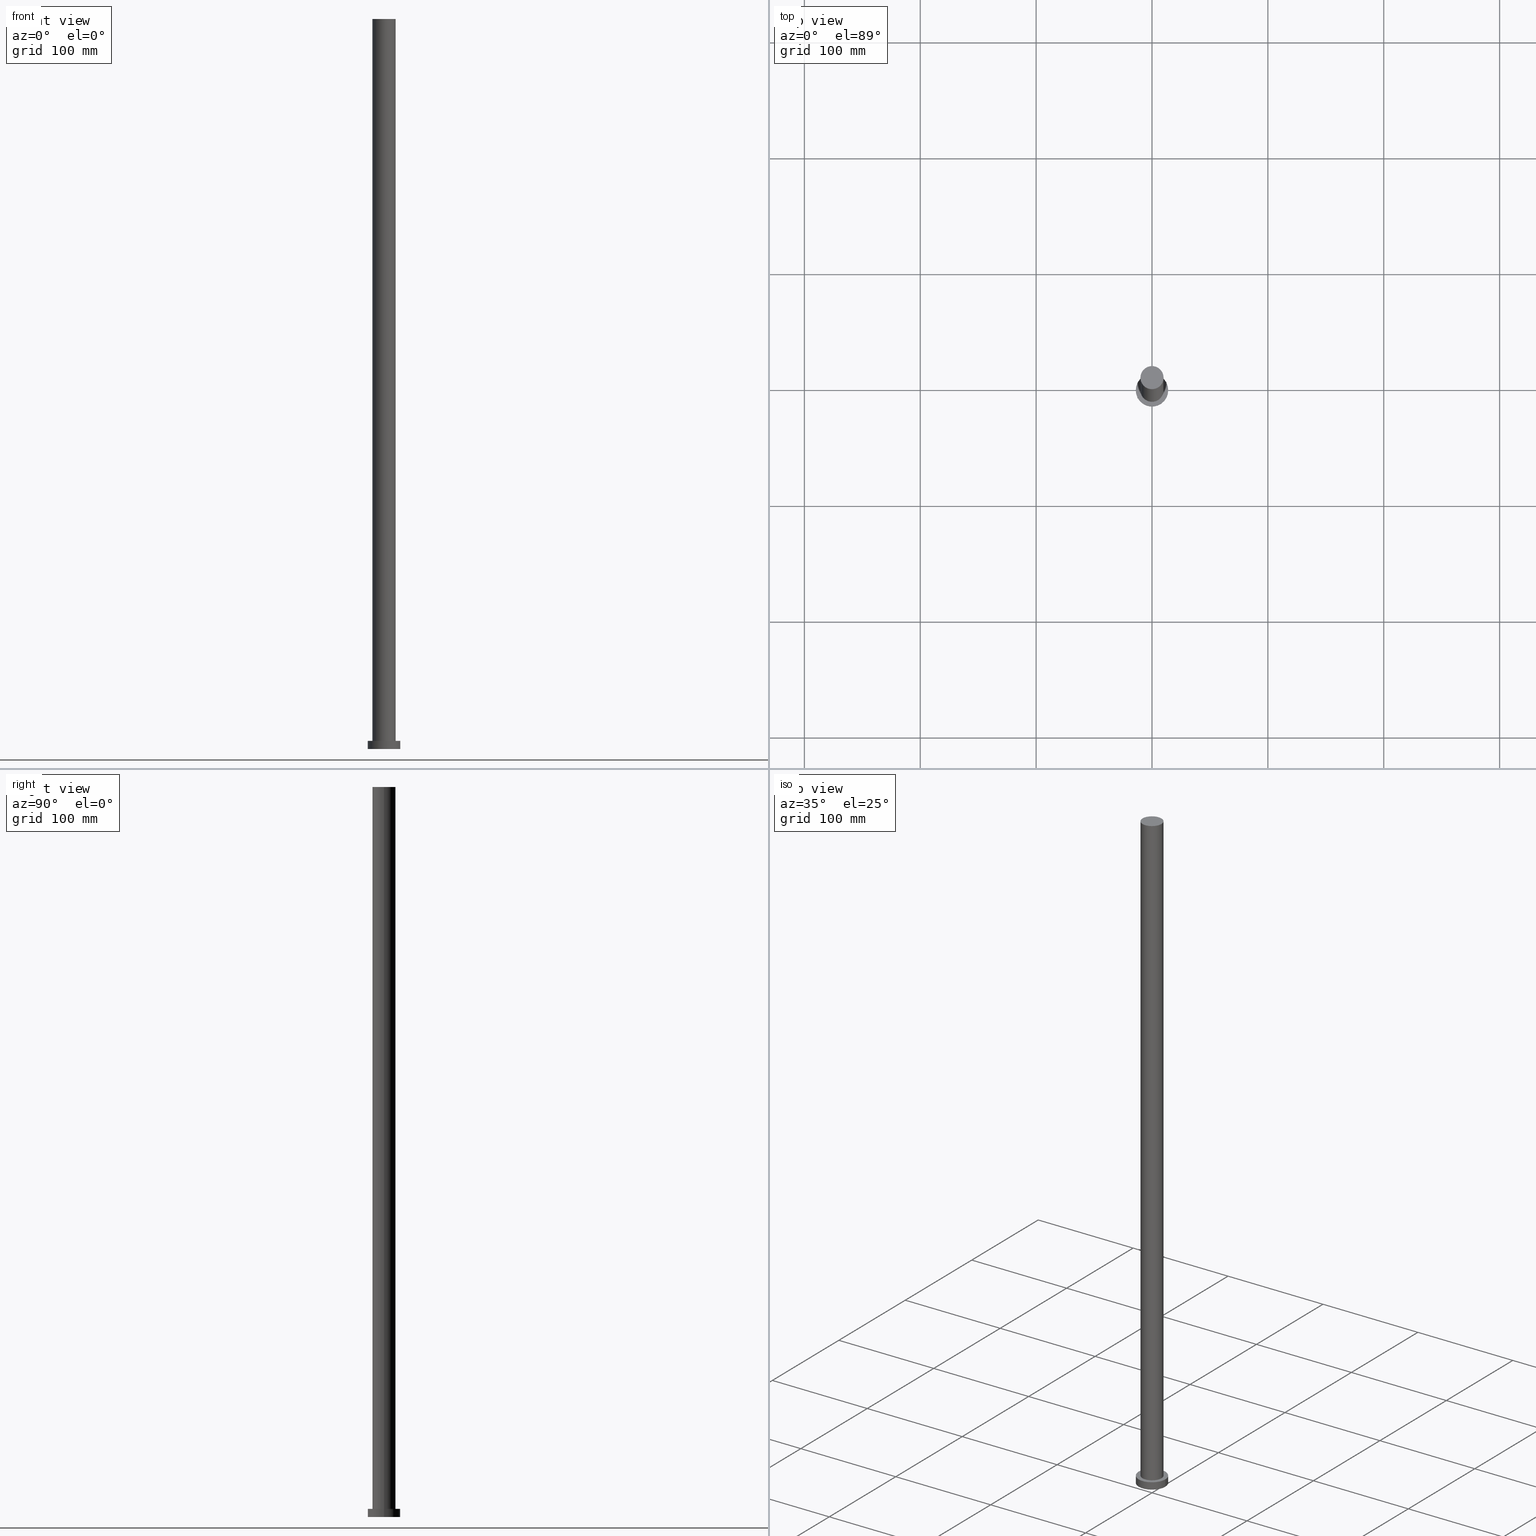
[diagram: canonical four-view strip — front | top / right | iso, engineering-drawing reading convention]
A machine part, canonical four-view strip (front | top / right | iso — engineering-drawing reading convention). The complete STEP part file that produces these views, byte-faithful:
ISO-10303-21;
HEADER;
FILE_DESCRIPTION (( 'STEP AP203' ),
    '1' );
FILE_NAME ('65ec.STEP',
    '2023-02-13T08:40:21',
    ( '' ),
    ( '' ),
    'SwSTEP 2.0',
    'SolidWorks 2019',
    '' );
FILE_SCHEMA (( 'CONFIG_CONTROL_DESIGN' ));
ENDSEC;

DATA;
#1 = ORIENTED_EDGE ( 'NONE', *, *, #174, .F. ) ;
#2 = EDGE_CURVE ( 'NONE', #104, #126, #176, .T. ) ;
#3 = AXIS2_PLACEMENT_3D ( 'NONE', #157, #167, #137 ) ;
#4 = APPROVAL_DATE_TIME ( #208, #120 ) ;
#5 = EDGE_LOOP ( 'NONE', ( #25, #252 ) ) ;
#6 = ADVANCED_FACE ( 'NONE', ( #69 ), #154, .T. ) ;
#7 = CALENDAR_DATE ( 2023, 13, 2 ) ;
#8 = CIRCLE ( 'NONE', #88, 14.00000000000000000 ) ;
#9 = DIRECTION ( 'NONE',  ( -0.000000000000000000, -0.000000000000000000, -1.000000000000000000 ) ) ;
#10 = CARTESIAN_POINT ( 'NONE',  ( 0.000000000000000000, 0.000000000000000000, 630.0000000000000000 ) ) ;
#11 = LOCAL_TIME ( 9, 40, 21.00000000000000000, #195 ) ;
#12 = DIRECTION ( 'NONE',  ( 1.000000000000000000, 0.000000000000000000, 0.000000000000000000 ) ) ;
#13 = APPROVAL ( #213, 'NEUR�EN�' ) ;
#14 = COORDINATED_UNIVERSAL_TIME_OFFSET ( 1, 0, .AHEAD. ) ;
#15 = MECHANICAL_CONTEXT ( 'NONE', #224, 'mechanical' ) ;
#16 = LOCAL_TIME ( 9, 40, 21.00000000000000000, #183 ) ;
#17 = PERSON_AND_ORGANIZATION ( #99, #26 ) ;
#18 = ADVANCED_FACE ( 'NONE', ( #109 ), #191, .T. ) ;
#19 = CARTESIAN_POINT ( 'NONE',  ( 0.000000000000000000, 0.000000000000000000, 7.000000000000000000 ) ) ;
#20 = ORIENTED_EDGE ( 'NONE', *, *, #146, .T. ) ;
#21 = PERSON_AND_ORGANIZATION_ROLE ( 'classification_officer' ) ;
#22 = ORIENTED_EDGE ( 'NONE', *, *, #51, .F. ) ;
#23 = PRODUCT_DEFINITION ( 'NEZN�M�', '', #39, #121 ) ;
#24 = FACE_OUTER_BOUND ( 'NONE', #5, .T. ) ;
#25 = ORIENTED_EDGE ( 'NONE', *, *, #55, .T. ) ;
#26 = ORGANIZATION ( 'NEUR�EN�', 'NEUR�EN�', '' ) ;
#27 = VERTEX_POINT ( 'NONE', #35 ) ;
#28 = ORIENTED_EDGE ( 'NONE', *, *, #62, .F. ) ;
#29 = AXIS2_PLACEMENT_3D ( 'NONE', #96, #127, #111 ) ;
#30 = AXIS2_PLACEMENT_3D ( 'NONE', #175, #141, #225 ) ;
#31 = CARTESIAN_POINT ( 'NONE',  ( -14.00000000000000000, 0.000000000000000000, 0.000000000000000000 ) ) ;
#32 = DIRECTION ( 'NONE',  ( -1.000000000000000000, 0.000000000000000000, 0.000000000000000000 ) ) ;
#33 = CARTESIAN_POINT ( 'NONE',  ( 0.000000000000000000, 0.000000000000000000, 0.000000000000000000 ) ) ;
#34 = CIRCLE ( 'NONE', #106, 10.00000000000000000 ) ;
#35 = CARTESIAN_POINT ( 'NONE',  ( 10.00000000000000000, 1.224646799147353256E-15, 7.000000000000000000 ) ) ;
#36 = DATE_AND_TIME ( #41, #11 ) ;
#37 = APPLICATION_PROTOCOL_DEFINITION ( 'international standard', 'config_control_design', 1994, #224 ) ;
#38 =( NAMED_UNIT ( * ) PLANE_ANGLE_UNIT ( ) SI_UNIT ( $, .RADIAN. ) );
#39 = PRODUCT_DEFINITION_FORMATION_WITH_SPECIFIED_SOURCE ( 'LIBOVOLN�', '', #78, .NOT_KNOWN. ) ;
#40 = DATE_AND_TIME ( #58, #16 ) ;
#41 = CALENDAR_DATE ( 2023, 13, 2 ) ;
#42 = ORIENTED_EDGE ( 'NONE', *, *, #214, .T. ) ;
#43 = DIRECTION ( 'NONE',  ( 0.000000000000000000, 0.000000000000000000, 1.000000000000000000 ) ) ;
#44 = DIRECTION ( 'NONE',  ( 1.000000000000000000, 0.000000000000000000, -0.000000000000000000 ) ) ;
#45 = CIRCLE ( 'NONE', #226, 10.00000000000000000 ) ;
#46 = CC_DESIGN_PERSON_AND_ORGANIZATION_ASSIGNMENT ( #17, #59, ( #78 ) ) ;
#47 = CARTESIAN_POINT ( 'NONE',  ( 0.000000000000000000, 0.000000000000000000, 7.000000000000000000 ) ) ;
#48 = DIRECTION ( 'NONE',  ( -1.000000000000000000, 0.000000000000000000, 0.000000000000000000 ) ) ;
#49 = DIRECTION ( 'NONE',  ( 0.000000000000000000, 0.000000000000000000, 1.000000000000000000 ) ) ;
#50 = DIRECTION ( 'NONE',  ( -1.000000000000000000, 0.000000000000000000, 0.000000000000000000 ) ) ;
#51 = EDGE_CURVE ( 'NONE', #165, #218, #112, .T. ) ;
#52 = PLANE ( 'NONE',  #30 ) ;
#53 = DIRECTION ( 'NONE',  ( 0.000000000000000000, 0.000000000000000000, 1.000000000000000000 ) ) ;
#54 = CALENDAR_DATE ( 2023, 13, 2 ) ;
#55 = EDGE_CURVE ( 'NONE', #87, #198, #8, .T. ) ;
#56 = PERSON_AND_ORGANIZATION ( #99, #26 ) ;
#57 = VECTOR ( 'NONE', #9, 1000.000000000000000 ) ;
#58 = CALENDAR_DATE ( 2023, 13, 2 ) ;
#59 = PERSON_AND_ORGANIZATION_ROLE ( 'design_owner' ) ;
#60 = EDGE_LOOP ( 'NONE', ( #128, #200 ) ) ;
#61 = CC_DESIGN_PERSON_AND_ORGANIZATION_ASSIGNMENT ( #144, #21, ( #66 ) ) ;
#62 = EDGE_CURVE ( 'NONE', #165, #235, #34, .T. ) ;
#63 = ORIENTED_EDGE ( 'NONE', *, *, #244, .F. ) ;
#64 = CARTESIAN_POINT ( 'NONE',  ( -14.00000000000000000, 0.000000000000000000, 7.000000000000000000 ) ) ;
#65 = EDGE_LOOP ( 'NONE', ( #63, #1 ) ) ;
#66 = SECURITY_CLASSIFICATION ( '', '', #161 ) ;
#67 = APPROVAL_STATUS ( 'not_yet_approved' ) ;
#68 = EDGE_CURVE ( 'NONE', #87, #126, #91, .T. ) ;
#69 = FACE_OUTER_BOUND ( 'NONE', #149, .T. ) ;
#70 = AXIS2_PLACEMENT_3D ( 'NONE', #210, #138, #50 ) ;
#71 = DIRECTION ( 'NONE',  ( 0.000000000000000000, 0.000000000000000000, 1.000000000000000000 ) ) ;
#72 = DIRECTION ( 'NONE',  ( -0.000000000000000000, -0.000000000000000000, -1.000000000000000000 ) ) ;
#73 = FACE_OUTER_BOUND ( 'NONE', #236, .T. ) ;
#74 = CIRCLE ( 'NONE', #29, 10.00000000000000000 ) ;
#75 = CARTESIAN_POINT ( 'NONE',  ( -10.00000000000000000, 0.000000000000000000, 630.0000000000000000 ) ) ;
#76 = CALENDAR_DATE ( 2023, 13, 2 ) ;
#77 = DIRECTION ( 'NONE',  ( 0.000000000000000000, 0.000000000000000000, 1.000000000000000000 ) ) ;
#78 = PRODUCT ( '65ec', '65ec', '', ( #15 ) ) ;
#79 = APPROVAL_ROLE ( '' ) ;
#80 = DATE_AND_TIME ( #54, #186 ) ;
#81 =( GEOMETRIC_REPRESENTATION_CONTEXT ( 3 ) GLOBAL_UNCERTAINTY_ASSIGNED_CONTEXT ( ( #181 ) ) GLOBAL_UNIT_ASSIGNED_CONTEXT ( ( #232, #38, #145 ) ) REPRESENTATION_CONTEXT ( 'NONE', 'WORKASPACE' ) );
#82 = APPROVAL ( #178, 'NEUR�EN�' ) ;
#83 = ORIENTED_EDGE ( 'NONE', *, *, #68, .T. ) ;
#84 = ORIENTED_EDGE ( 'NONE', *, *, #98, .T. ) ;
#85 = ORIENTED_EDGE ( 'NONE', *, *, #2, .F. ) ;
#86 = PLANE ( 'NONE',  #3 ) ;
#87 = VERTEX_POINT ( 'NONE', #64 ) ;
#88 = AXIS2_PLACEMENT_3D ( 'NONE', #92, #49, #12 ) ;
#89 = CC_DESIGN_DATE_AND_TIME_ASSIGNMENT ( #246, #125, ( #66 ) ) ;
#90 = DIRECTION ( 'NONE',  ( 0.000000000000000000, 0.000000000000000000, 1.000000000000000000 ) ) ;
#91 = LINE ( 'NONE', #172, #139 ) ;
#92 = CARTESIAN_POINT ( 'NONE',  ( 0.000000000000000000, 0.000000000000000000, 7.000000000000000000 ) ) ;
#93 = ADVANCED_FACE ( 'NONE', ( #73 ), #240, .T. ) ;
#94 = AXIS2_PLACEMENT_3D ( 'NONE', #108, #155, #48 ) ;
#95 = DIRECTION ( 'NONE',  ( 1.000000000000000000, 0.000000000000000000, 0.000000000000000000 ) ) ;
#96 = CARTESIAN_POINT ( 'NONE',  ( 0.000000000000000000, 0.000000000000000000, 630.0000000000000000 ) ) ;
#97 = DIRECTION ( 'NONE',  ( 0.000000000000000000, 0.000000000000000000, 1.000000000000000000 ) ) ;
#98 = EDGE_CURVE ( 'NONE', #235, #27, #229, .T. ) ;
#99 = PERSON ( 'NEUR�EN�', 'NEUR�EN�', 'NEUR�EN�', ('NEUR�EN�'), ('NEUR�EN�'), ('NEUR�EN�') ) ;
#100 = ADVANCED_FACE ( 'NONE', ( #241, #24 ), #86, .T. ) ;
#101 = ORIENTED_EDGE ( 'NONE', *, *, #151, .F. ) ;
#102 = CARTESIAN_POINT ( 'NONE',  ( 0.000000000000000000, 0.000000000000000000, 7.000000000000000000 ) ) ;
#103 = CIRCLE ( 'NONE', #247, 14.00000000000000000 ) ;
#104 = VERTEX_POINT ( 'NONE', #150 ) ;
#105 = ADVANCED_FACE ( 'NONE', ( #192 ), #219, .T. ) ;
#106 = AXIS2_PLACEMENT_3D ( 'NONE', #10, #136, #95 ) ;
#107 = CARTESIAN_POINT ( 'NONE',  ( 0.000000000000000000, 0.000000000000000000, 0.000000000000000000 ) ) ;
#108 = CARTESIAN_POINT ( 'NONE',  ( 0.000000000000000000, 0.000000000000000000, 630.0000000000000000 ) ) ;
#109 = FACE_OUTER_BOUND ( 'NONE', #217, .T. ) ;
#110 = CARTESIAN_POINT ( 'NONE',  ( 0.000000000000000000, 0.000000000000000000, 630.0000000000000000 ) ) ;
#111 = DIRECTION ( 'NONE',  ( 1.000000000000000000, 0.000000000000000000, 0.000000000000000000 ) ) ;
#112 = LINE ( 'NONE', #228, #57 ) ;
#113 = CC_DESIGN_APPROVAL ( #120, ( #66 ) ) ;
#114 = CARTESIAN_POINT ( 'NONE',  ( 10.00000000000000000, 1.224646799147353256E-15, 630.0000000000000000 ) ) ;
#115 = DIRECTION ( 'NONE',  ( 1.000000000000000000, 0.000000000000000000, 0.000000000000000000 ) ) ;
#116 = DIRECTION ( 'NONE',  ( 1.000000000000000000, 0.000000000000000000, 0.000000000000000000 ) ) ;
#117 = CC_DESIGN_APPROVAL ( #82, ( #23 ) ) ;
#118 = PERSON_AND_ORGANIZATION ( #99, #26 ) ;
#119 = PERSON_AND_ORGANIZATION_ROLE ( 'creator' ) ;
#120 = APPROVAL ( #67, 'NEUR�EN�' ) ;
#121 = DESIGN_CONTEXT ( 'detailed design', #250, 'design' ) ;
#122 = CARTESIAN_POINT ( 'NONE',  ( 0.000000000000000000, 0.000000000000000000, 0.000000000000000000 ) ) ;
#123 = AXIS2_PLACEMENT_3D ( 'NONE', #110, #188, #227 ) ;
#124 = ORIENTED_EDGE ( 'NONE', *, *, #98, .F. ) ;
#125 = DATE_TIME_ROLE ( 'classification_date' ) ;
#126 = VERTEX_POINT ( 'NONE', #31 ) ;
#127 = DIRECTION ( 'NONE',  ( 0.000000000000000000, 0.000000000000000000, 1.000000000000000000 ) ) ;
#128 = ORIENTED_EDGE ( 'NONE', *, *, #62, .T. ) ;
#129 = APPROVAL_PERSON_ORGANIZATION ( #56, #82, #233 ) ;
#130 = EDGE_LOOP ( 'NONE', ( #204, #85 ) ) ;
#131 = PRODUCT_DEFINITION_SHAPE ( 'NONE', 'NONE',  #23 ) ;
#132 = EDGE_CURVE ( 'NONE', #235, #165, #74, .T. ) ;
#133 = CYLINDRICAL_SURFACE ( 'NONE', #94, 10.00000000000000000 ) ;
#134 = CIRCLE ( 'NONE', #201, 10.00000000000000000 ) ;
#135 = ORIENTED_EDGE ( 'NONE', *, *, #244, .T. ) ;
#136 = DIRECTION ( 'NONE',  ( 0.000000000000000000, 0.000000000000000000, 1.000000000000000000 ) ) ;
#137 = DIRECTION ( 'NONE',  ( 1.000000000000000000, 0.000000000000000000, -0.000000000000000000 ) ) ;
#138 = DIRECTION ( 'NONE',  ( -0.000000000000000000, -0.000000000000000000, -1.000000000000000000 ) ) ;
#139 = VECTOR ( 'NONE', #193, 1000.000000000000000 ) ;
#140 = APPROVAL_ROLE ( '' ) ;
#141 = DIRECTION ( 'NONE',  ( 0.000000000000000000, 0.000000000000000000, 1.000000000000000000 ) ) ;
#142 = CIRCLE ( 'NONE', #216, 14.00000000000000000 ) ;
#143 = ADVANCED_FACE ( 'NONE', ( #242 ), #52, .F. ) ;
#144 = PERSON_AND_ORGANIZATION ( #99, #26 ) ;
#145 =( NAMED_UNIT ( * ) SI_UNIT ( $, .STERADIAN. ) SOLID_ANGLE_UNIT ( ) );
#146 = EDGE_CURVE ( 'NONE', #198, #104, #205, .T. ) ;
#147 = LOCAL_TIME ( 9, 40, 21.00000000000000000, #173 ) ;
#148 = APPLICATION_PROTOCOL_DEFINITION ( 'international standard', 'config_control_design', 1994, #250 ) ;
#149 = EDGE_LOOP ( 'NONE', ( #101, #20, #239, #202 ) ) ;
#150 = CARTESIAN_POINT ( 'NONE',  ( 14.00000000000000000, 1.714505518806294638E-15, 0.000000000000000000 ) ) ;
#151 = EDGE_CURVE ( 'NONE', #198, #87, #142, .T. ) ;
#152 = LOCAL_TIME ( 9, 40, 21.00000000000000000, #248 ) ;
#153 = SHAPE_DEFINITION_REPRESENTATION ( #131, #254 ) ;
#154 = CYLINDRICAL_SURFACE ( 'NONE', #251, 14.00000000000000000 ) ;
#155 = DIRECTION ( 'NONE',  ( -0.000000000000000000, -0.000000000000000000, -1.000000000000000000 ) ) ;
#156 = VECTOR ( 'NONE', #243, 1000.000000000000000 ) ;
#157 = CARTESIAN_POINT ( 'NONE',  ( 0.000000000000000000, 0.000000000000000000, 7.000000000000000000 ) ) ;
#158 = AXIS2_PLACEMENT_3D ( 'NONE', #209, #43, #44 ) ;
#159 = CARTESIAN_POINT ( 'NONE',  ( 10.00000000000000000, 1.224646799147353256E-15, 630.0000000000000000 ) ) ;
#160 = PERSON_AND_ORGANIZATION ( #99, #26 ) ;
#161 = SECURITY_CLASSIFICATION_LEVEL ( 'unclassified' ) ;
#162 = EDGE_LOOP ( 'NONE', ( #189, #84, #249, #22 ) ) ;
#163 = CC_DESIGN_PERSON_AND_ORGANIZATION_ASSIGNMENT ( #160, #197, ( #39 ) ) ;
#164 = CLOSED_SHELL ( 'NONE', ( #187, #6, #18, #100, #143, #93, #105 ) ) ;
#165 = VERTEX_POINT ( 'NONE', #75 ) ;
#166 = ORIENTED_EDGE ( 'NONE', *, *, #55, .F. ) ;
#167 = DIRECTION ( 'NONE',  ( 0.000000000000000000, 0.000000000000000000, 1.000000000000000000 ) ) ;
#168 = CC_DESIGN_PERSON_AND_ORGANIZATION_ASSIGNMENT ( #118, #119, ( #23 ) ) ;
#169 = DIRECTION ( 'NONE',  ( 1.000000000000000000, 0.000000000000000000, 0.000000000000000000 ) ) ;
#170 = CC_DESIGN_DATE_AND_TIME_ASSIGNMENT ( #40, #177, ( #23 ) ) ;
#171 = DIRECTION ( 'NONE',  ( 1.000000000000000000, 0.000000000000000000, 0.000000000000000000 ) ) ;
#172 = CARTESIAN_POINT ( 'NONE',  ( -14.00000000000000000, 0.000000000000000000, 7.000000000000000000 ) ) ;
#173 = COORDINATED_UNIVERSAL_TIME_OFFSET ( 1, 0, .AHEAD. ) ;
#174 = EDGE_CURVE ( 'NONE', #27, #218, #45, .T. ) ;
#175 = CARTESIAN_POINT ( 'NONE',  ( 0.000000000000000000, 0.000000000000000000, 0.000000000000000000 ) ) ;
#176 = CIRCLE ( 'NONE', #223, 14.00000000000000000 ) ;
#177 = DATE_TIME_ROLE ( 'creation_date' ) ;
#178 = APPROVAL_STATUS ( 'not_yet_approved' ) ;
#179 = DIRECTION ( 'NONE',  ( 1.000000000000000000, 0.000000000000000000, 0.000000000000000000 ) ) ;
#180 = PERSON_AND_ORGANIZATION ( #99, #26 ) ;
#181 = UNCERTAINTY_MEASURE_WITH_UNIT (LENGTH_MEASURE( 1.000000000000000082E-05 ), #232, 'distance_accuracy_value', 'NONE');
#182 = APPROVAL_PERSON_ORGANIZATION ( #253, #120, #140 ) ;
#183 = COORDINATED_UNIVERSAL_TIME_OFFSET ( 1, 0, .AHEAD. ) ;
#184 = CC_DESIGN_PERSON_AND_ORGANIZATION_ASSIGNMENT ( #245, #215, ( #39 ) ) ;
#185 = ORIENTED_EDGE ( 'NONE', *, *, #51, .T. ) ;
#186 = LOCAL_TIME ( 9, 40, 21.00000000000000000, #14 ) ;
#187 = ADVANCED_FACE ( 'NONE', ( #220 ), #133, .T. ) ;
#188 = DIRECTION ( 'NONE',  ( -0.000000000000000000, -0.000000000000000000, -1.000000000000000000 ) ) ;
#189 = ORIENTED_EDGE ( 'NONE', *, *, #132, .F. ) ;
#190 = CARTESIAN_POINT ( 'NONE',  ( 14.00000000000000000, 1.714505518806294638E-15, 7.000000000000000000 ) ) ;
#191 = CYLINDRICAL_SURFACE ( 'NONE', #70, 14.00000000000000000 ) ;
#192 = FACE_OUTER_BOUND ( 'NONE', #60, .T. ) ;
#193 = DIRECTION ( 'NONE',  ( -0.000000000000000000, -0.000000000000000000, -1.000000000000000000 ) ) ;
#194 = APPROVAL_PERSON_ORGANIZATION ( #180, #13, #79 ) ;
#195 = COORDINATED_UNIVERSAL_TIME_OFFSET ( 1, 0, .AHEAD. ) ;
#196 = APPROVAL_DATE_TIME ( #36, #82 ) ;
#197 = PERSON_AND_ORGANIZATION_ROLE ( 'design_supplier' ) ;
#198 = VERTEX_POINT ( 'NONE', #207 ) ;
#199 = APPROVAL_DATE_TIME ( #80, #13 ) ;
#200 = ORIENTED_EDGE ( 'NONE', *, *, #132, .T. ) ;
#201 = AXIS2_PLACEMENT_3D ( 'NONE', #19, #97, #115 ) ;
#202 = ORIENTED_EDGE ( 'NONE', *, *, #68, .F. ) ;
#203 = PRODUCT_RELATED_PRODUCT_CATEGORY ( 'detail', '', ( #78 ) ) ;
#204 = ORIENTED_EDGE ( 'NONE', *, *, #214, .F. ) ;
#205 = LINE ( 'NONE', #190, #156 ) ;
#206 = DIRECTION ( 'NONE',  ( -0.000000000000000000, -0.000000000000000000, -1.000000000000000000 ) ) ;
#207 = CARTESIAN_POINT ( 'NONE',  ( 14.00000000000000000, 1.714505518806294638E-15, 7.000000000000000000 ) ) ;
#208 = DATE_AND_TIME ( #7, #147 ) ;
#209 = CARTESIAN_POINT ( 'NONE',  ( 0.000000000000000000, 0.000000000000000000, 630.0000000000000000 ) ) ;
#210 = CARTESIAN_POINT ( 'NONE',  ( 0.000000000000000000, 0.000000000000000000, 7.000000000000000000 ) ) ;
#211 = CARTESIAN_POINT ( 'NONE',  ( 0.000000000000000000, 0.000000000000000000, 7.000000000000000000 ) ) ;
#212 = CC_DESIGN_SECURITY_CLASSIFICATION ( #66, ( #39 ) ) ;
#213 = APPROVAL_STATUS ( 'not_yet_approved' ) ;
#214 = EDGE_CURVE ( 'NONE', #126, #104, #103, .T. ) ;
#215 = PERSON_AND_ORGANIZATION_ROLE ( 'creator' ) ;
#216 = AXIS2_PLACEMENT_3D ( 'NONE', #211, #71, #171 ) ;
#217 = EDGE_LOOP ( 'NONE', ( #222, #166, #83, #42 ) ) ;
#218 = VERTEX_POINT ( 'NONE', #231 ) ;
#219 = PLANE ( 'NONE',  #158 ) ;
#220 = FACE_OUTER_BOUND ( 'NONE', #162, .T. ) ;
#221 = CC_DESIGN_APPROVAL ( #13, ( #39 ) ) ;
#222 = ORIENTED_EDGE ( 'NONE', *, *, #146, .F. ) ;
#223 = AXIS2_PLACEMENT_3D ( 'NONE', #107, #90, #169 ) ;
#224 = APPLICATION_CONTEXT ( 'configuration controlled 3d designs of mechanical parts and assemblies' ) ;
#225 = DIRECTION ( 'NONE',  ( 1.000000000000000000, 0.000000000000000000, -0.000000000000000000 ) ) ;
#226 = AXIS2_PLACEMENT_3D ( 'NONE', #102, #255, #237 ) ;
#227 = DIRECTION ( 'NONE',  ( -1.000000000000000000, 0.000000000000000000, 0.000000000000000000 ) ) ;
#228 = CARTESIAN_POINT ( 'NONE',  ( -10.00000000000000000, 0.000000000000000000, 630.0000000000000000 ) ) ;
#229 = LINE ( 'NONE', #114, #230 ) ;
#230 = VECTOR ( 'NONE', #72, 1000.000000000000000 ) ;
#231 = CARTESIAN_POINT ( 'NONE',  ( -10.00000000000000000, 0.000000000000000000, 7.000000000000000000 ) ) ;
#232 =( LENGTH_UNIT ( ) NAMED_UNIT ( * ) SI_UNIT ( .MILLI., .METRE. ) );
#233 = APPROVAL_ROLE ( '' ) ;
#234 = AXIS2_PLACEMENT_3D ( 'NONE', #122, #77, #179 ) ;
#235 = VERTEX_POINT ( 'NONE', #159 ) ;
#236 = EDGE_LOOP ( 'NONE', ( #124, #28, #185, #135 ) ) ;
#237 = DIRECTION ( 'NONE',  ( 1.000000000000000000, 0.000000000000000000, 0.000000000000000000 ) ) ;
#238 = MANIFOLD_SOLID_BREP ( 'P�idat vysunut�m3', #164 ) ;
#239 = ORIENTED_EDGE ( 'NONE', *, *, #2, .T. ) ;
#240 = CYLINDRICAL_SURFACE ( 'NONE', #123, 10.00000000000000000 ) ;
#241 = FACE_BOUND ( 'NONE', #65, .T. ) ;
#242 = FACE_OUTER_BOUND ( 'NONE', #130, .T. ) ;
#243 = DIRECTION ( 'NONE',  ( -0.000000000000000000, -0.000000000000000000, -1.000000000000000000 ) ) ;
#244 = EDGE_CURVE ( 'NONE', #218, #27, #134, .T. ) ;
#245 = PERSON_AND_ORGANIZATION ( #99, #26 ) ;
#246 = DATE_AND_TIME ( #76, #152 ) ;
#247 = AXIS2_PLACEMENT_3D ( 'NONE', #33, #53, #116 ) ;
#248 = COORDINATED_UNIVERSAL_TIME_OFFSET ( 1, 0, .AHEAD. ) ;
#249 = ORIENTED_EDGE ( 'NONE', *, *, #174, .T. ) ;
#250 = APPLICATION_CONTEXT ( 'configuration controlled 3d designs of mechanical parts and assemblies' ) ;
#251 = AXIS2_PLACEMENT_3D ( 'NONE', #47, #206, #32 ) ;
#252 = ORIENTED_EDGE ( 'NONE', *, *, #151, .T. ) ;
#253 = PERSON_AND_ORGANIZATION ( #99, #26 ) ;
#254 = ADVANCED_BREP_SHAPE_REPRESENTATION ( '65ec', ( #238, #234 ), #81 ) ;
#255 = DIRECTION ( 'NONE',  ( 0.000000000000000000, 0.000000000000000000, 1.000000000000000000 ) ) ;
ENDSEC;
END-ISO-10303-21;
